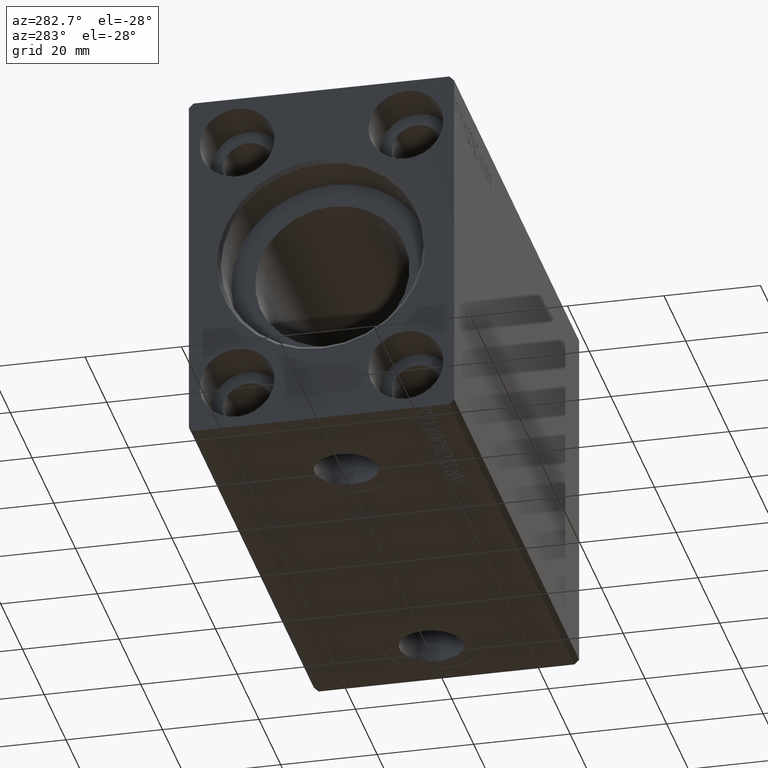
[diagram: clean part render]
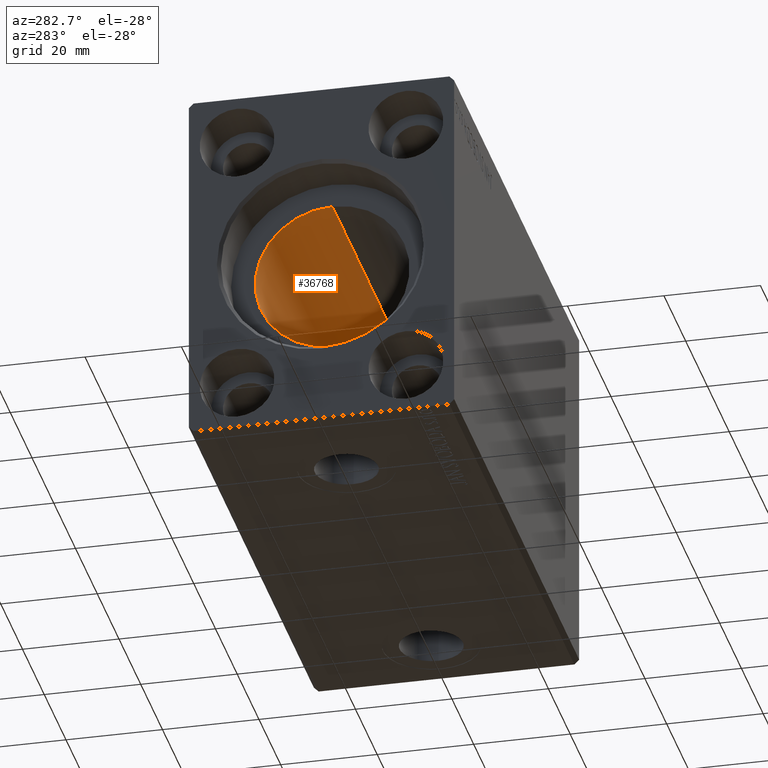
[diagram: same view with one face highlighted and labeled with its STEP entity id]
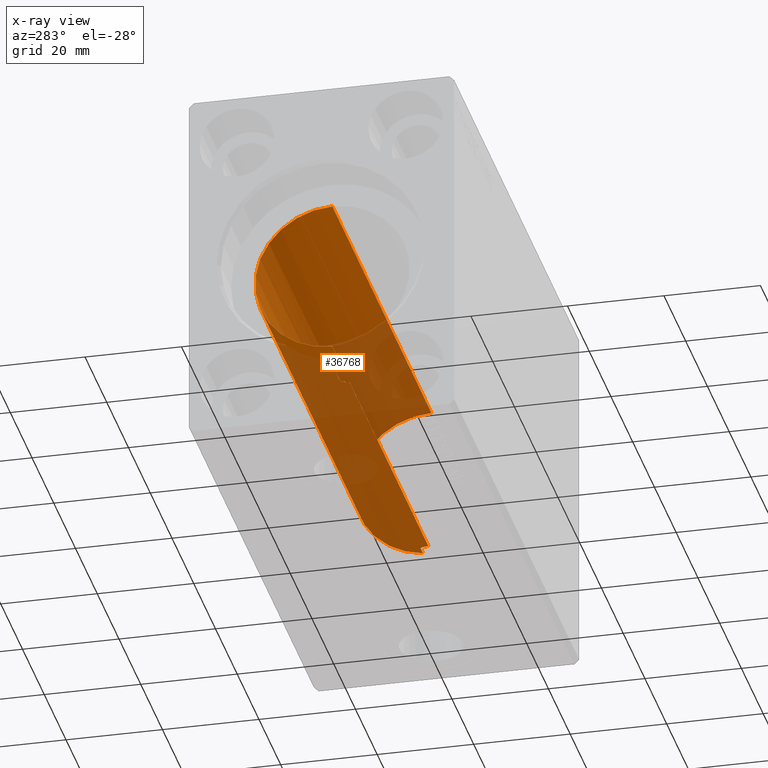
[diagram: x-ray of the same camera — body ghosted, the highlighted face saturated]
A machine part, auxiliary view. The second image highlights one B-rep face of the part: STEP entity #36768.
The next image is the same camera in x-ray: the body ghosted, the highlighted face saturated — about 56% of this face is hidden behind the body in this view.
In plain terms, the highlighted cylindrical surface (partial cylindrical patch) has radius 16 mm, axis along (-1, -0, -0).
Its self-contained STEP definition (entity closure, byte-faithful):
#156 = EDGE_CURVE ( 'NONE', #13833, #29088, #15360, .T. ) ;
#319 = ORIENTED_EDGE ( 'NONE', *, *, #12305, .F. ) ;
#1252 = CYLINDRICAL_SURFACE ( 'NONE', #37849, 16.00000000000000000 ) ;
#1876 = CARTESIAN_POINT ( 'NONE',  ( 101.2000000000000028, 1.786057109949259036, -15.89999999999998970 ) ) ;
#2191 = CARTESIAN_POINT ( 'NONE',  ( 20.80302300273467964, 1.662044306363391177, -15.91393043707981292 ) ) ;
#2592 = ORIENTED_EDGE ( 'NONE', *, *, #156, .T. ) ;
#3091 = CARTESIAN_POINT ( 'NONE',  ( 98.80302300273469029, 1.662044306363389179, -15.91393043707981647 ) ) ;
#3174 = B_SPLINE_CURVE_WITH_KNOTS ( 'NONE', 3,
 ( #23387, #4209, #27049, #30710, #34154, #14330, #17349, #30501 ),
 .UNSPECIFIED., .F., .F.,
 ( 4, 2, 2, 4 ),
 ( 0.000000000000000000, 0.0009687575396886391509, 0.001453136309532957046, 0.001937515079377275266 ),
 .UNSPECIFIED. ) ;
#3402 = DIRECTION ( 'NONE',  ( -1.000000000000000000, 0.000000000000000000, 0.000000000000000000 ) ) ;
#3600 = EDGE_LOOP ( 'NONE', ( #319, #40379, #35843, #33974, #2592, #40582, #26563, #42376, #6209, #38715 ) ) ;
#4198 = VERTEX_POINT ( 'NONE', #26802 ) ;
#4209 = CARTESIAN_POINT ( 'NONE',  ( 25.30299467954352011, 1.537922561208759253, -15.92787311163533914 ) ) ;
#5044 = AXIS2_PLACEMENT_3D ( 'NONE', #22615, #25637, #21978 ) ;
#6017 = DIRECTION ( 'NONE',  ( 0.000000000000000000, 0.000000000000000000, 1.000000000000000000 ) ) ;
#6209 = ORIENTED_EDGE ( 'NONE', *, *, #10328, .F. ) ;
#6355 = VERTEX_POINT ( 'NONE', #34046 ) ;
#7246 = EDGE_CURVE ( 'NONE', #13833, #6355, #23627, .T. ) ;
#8502 = CARTESIAN_POINT ( 'NONE',  ( 98.25000000000000000, 1.952197382189107282E-15, -16.00000000000000000 ) ) ;
#8555 = CARTESIAN_POINT ( 'NONE',  ( 98.90894763336741846, 1.786057109949259036, -15.89999999999998970 ) ) ;
#8889 = CARTESIAN_POINT ( 'NONE',  ( 20.70828422114123057, 1.528580496451064752, -15.92742812959714982 ) ) ;
#9570 = CARTESIAN_POINT ( 'NONE',  ( 98.25000000000000000, 1.952197382189107282E-15, -16.00000000000000000 ) ) ;
#10179 = CARTESIAN_POINT ( 'NONE',  ( 101.2000000000000028, 1.959434878635765131E-15, -16.00000000000000000 ) ) ;
#10328 = EDGE_CURVE ( 'NONE', #41513, #10723, #35706, .T. ) ;
#10345 = CARTESIAN_POINT ( 'NONE',  ( 9.999999999999994671, 0.000000000000000000, 16.00000000000000000 ) ) ;
#10723 = VERTEX_POINT ( 'NONE', #19843 ) ;
#11164 = EDGE_CURVE ( 'NONE', #6355, #29739, #40459, .T. ) ;
#11608 = DIRECTION ( 'NONE',  ( 0.000000000000000000, 0.000000000000000000, 1.000000000000000000 ) ) ;
#11957 = CARTESIAN_POINT ( 'NONE',  ( 98.47635814035336921, 1.104555034037125516, -15.96255602784426486 ) ) ;
#12034 = LINE ( 'NONE', #41545, #34053 ) ;
#12152 = VECTOR ( 'NONE', #23326, 1000.000000000000000 ) ;
#12305 = EDGE_CURVE ( 'NONE', #17486, #36952, #12034, .T. ) ;
#12559 = CARTESIAN_POINT ( 'NONE',  ( 101.2000000000000028, 0.000000000000000000, 16.00000000000000000 ) ) ;
#12770 = DIRECTION ( 'NONE',  ( -1.000000000000000000, -0.000000000000000000, -0.000000000000000000 ) ) ;
#13833 = VERTEX_POINT ( 'NONE', #36762 ) ;
#14290 = EDGE_CURVE ( 'NONE', #42185, #10723, #18925, .T. ) ;
#14330 = CARTESIAN_POINT ( 'NONE',  ( 25.73536268302067853, 0.3260974502564771282, -15.99746611559688780 ) ) ;
#14407 = CARTESIAN_POINT ( 'NONE',  ( 101.2000000000000028, 0.000000000000000000, 0.000000000000000000 ) ) ;
#15192 = CARTESIAN_POINT ( 'NONE',  ( 98.32103554224153186, 0.6416550435731656066, -15.98791951246751886 ) ) ;
#15360 = LINE ( 'NONE', #12559, #18744 ) ;
#17213 = EDGE_CURVE ( 'NONE', #29088, #4198, #23126, .T. ) ;
#17349 = CARTESIAN_POINT ( 'NONE',  ( 25.75000000000000355, 0.1629275007895856497, -16.00000000000000000 ) ) ;
#17486 = VERTEX_POINT ( 'NONE', #9570 ) ;
#17685 = CARTESIAN_POINT ( 'NONE',  ( 20.25000000000000000, 1.952197298178576320E-15, -16.00000000000000000 ) ) ;
#18585 = CARTESIAN_POINT ( 'NONE',  ( 20.36400824168861234, 0.8002234119869107154, -15.98070334047259777 ) ) ;
#18707 = CARTESIAN_POINT ( 'NONE',  ( 25.75000000000000000, 1.966672454835068530E-15, -16.00000000000000000 ) ) ;
#18744 = VECTOR ( 'NONE', #12770, 1000.000000000000000 ) ;
#18925 = B_SPLINE_CURVE_WITH_KNOTS ( 'NONE', 3,
 ( #26120, #35386, #25267, #39260, #18585, #21819, #31740, #8889, #2191, #22034 ),
 .UNSPECIFIED., .F., .F.,
 ( 4, 2, 2, 2, 4 ),
 ( 0.001937515079377276567, 0.002421672136522722528, 0.002905829193668168706, 0.003389986250813614450, 0.003874143307959060194 ),
 .UNSPECIFIED. ) ;
#19013 = AXIS2_PLACEMENT_3D ( 'NONE', #26266, #3402, #6017 ) ;
#19843 = CARTESIAN_POINT ( 'NONE',  ( 20.90894763336742912, 1.786057109949259036, -15.89999999999998970 ) ) ;
#21647 = CARTESIAN_POINT ( 'NONE',  ( 98.24999999999997158, 0.1628529246558471366, -15.99999999999999645 ) ) ;
#21683 = EDGE_CURVE ( 'NONE', #42185, #4198, #39700, .T. ) ;
#21819 = CARTESIAN_POINT ( 'NONE',  ( 20.47635814035335855, 1.104555034037125516, -15.96255602784426841 ) ) ;
#21978 = DIRECTION ( 'NONE',  ( 0.000000000000000000, 0.000000000000000000, 1.000000000000000000 ) ) ;
#22034 = CARTESIAN_POINT ( 'NONE',  ( 20.90894763336742912, 1.786057109949259036, -15.89999999999998970 ) ) ;
#22128 = DIRECTION ( 'NONE',  ( -1.000000000000000000, -0.000000000000000000, -0.000000000000000000 ) ) ;
#22615 = CARTESIAN_POINT ( 'NONE',  ( 101.2000000000000028, 0.000000000000000000, 0.000000000000000000 ) ) ;
#22708 = CARTESIAN_POINT ( 'NONE',  ( 98.70828422114124123, 1.528580496451063198, -15.92742812959714982 ) ) ;
#23126 = CIRCLE ( 'NONE', #19013, 16.00000000000000000 ) ;
#23326 = DIRECTION ( 'NONE',  ( -1.000000000000000000, -0.000000000000000000, -0.000000000000000000 ) ) ;
#23387 = CARTESIAN_POINT ( 'NONE',  ( 25.09105236663257088, 1.786057109949259036, -15.89999999999998970 ) ) ;
#23627 = CIRCLE ( 'NONE', #5044, 16.00000000000000000 ) ;
#23892 = DIRECTION ( 'NONE',  ( -1.000000000000000000, -0.000000000000000000, -0.000000000000000000 ) ) ;
#24735 = DIRECTION ( 'NONE',  ( -1.000000000000000000, -0.000000000000000000, -0.000000000000000000 ) ) ;
#25076 = VECTOR ( 'NONE', #24735, 1000.000000000000000 ) ;
#25267 = CARTESIAN_POINT ( 'NONE',  ( 20.26435230214253380, 0.3237335850403343929, -15.99751506009603652 ) ) ;
#25637 = DIRECTION ( 'NONE',  ( -1.000000000000000000, 0.000000000000000000, 0.000000000000000000 ) ) ;
#26120 = CARTESIAN_POINT ( 'NONE',  ( 20.25000000000000000, 1.952197298178576320E-15, -16.00000000000000000 ) ) ;
#26266 = CARTESIAN_POINT ( 'NONE',  ( 9.999999999999994671, 0.000000000000000000, 0.000000000000000000 ) ) ;
#26563 = ORIENTED_EDGE ( 'NONE', *, *, #21683, .F. ) ;
#26802 = CARTESIAN_POINT ( 'NONE',  ( 9.999999999999994671, 1.959434878635765131E-15, -16.00000000000000000 ) ) ;
#27049 = CARTESIAN_POINT ( 'NONE',  ( 25.46669777805105639, 1.258673386848676135, -15.95335904956524864 ) ) ;
#29088 = VERTEX_POINT ( 'NONE', #10345 ) ;
#29739 = VERTEX_POINT ( 'NONE', #8555 ) ;
#30003 = EDGE_CURVE ( 'NONE', #41513, #36952, #3174, .T. ) ;
#30501 = CARTESIAN_POINT ( 'NONE',  ( 25.75000000000000000, 1.966672454835068530E-15, -16.00000000000000000 ) ) ;
#30710 = CARTESIAN_POINT ( 'NONE',  ( 25.63617786229477957, 0.7997846173174859574, -15.98073294566550473 ) ) ;
#30788 = FACE_OUTER_BOUND ( 'NONE', #3600, .T. ) ;
#31569 = CARTESIAN_POINT ( 'NONE',  ( 98.26435230214251249, 0.3237335850403359472, -15.99751506009604007 ) ) ;
#31740 = CARTESIAN_POINT ( 'NONE',  ( 20.54529199024537789, 1.250171241089528928, -15.95169574138015278 ) ) ;
#33974 = ORIENTED_EDGE ( 'NONE', *, *, #7246, .F. ) ;
#34046 = CARTESIAN_POINT ( 'NONE',  ( 101.2000000000000028, 1.786057109949259036, -15.89999999999998970 ) ) ;
#34053 = VECTOR ( 'NONE', #41968, 1000.000000000000000 ) ;
#34092 = EDGE_CURVE ( 'NONE', #17486, #29739, #42438, .T. ) ;
#34154 = CARTESIAN_POINT ( 'NONE',  ( 25.67843830749630740, 0.6438297815899759469, -15.98783114994251697 ) ) ;
#34707 = VECTOR ( 'NONE', #22128, 1000.000000000000000 ) ;
#35386 = CARTESIAN_POINT ( 'NONE',  ( 20.25000000000000000, 0.1628529246558463039, -16.00000000000000000 ) ) ;
#35706 = LINE ( 'NONE', #41308, #34707 ) ;
#35843 = ORIENTED_EDGE ( 'NONE', *, *, #11164, .F. ) ;
#36566 = CARTESIAN_POINT ( 'NONE',  ( 25.09105236663257088, 1.786057109949259036, -15.89999999999998970 ) ) ;
#36762 = CARTESIAN_POINT ( 'NONE',  ( 101.2000000000000028, 0.000000000000000000, 16.00000000000000000 ) ) ;
#36768 = ADVANCED_FACE ( 'NONE', ( #30788 ), #1252, .F. ) ;
#36952 = VERTEX_POINT ( 'NONE', #18707 ) ;
#37849 = AXIS2_PLACEMENT_3D ( 'NONE', #14407, #23892, #11608 ) ;
#38667 = CARTESIAN_POINT ( 'NONE',  ( 98.90894763336741846, 1.786057109949259036, -15.89999999999998970 ) ) ;
#38715 = ORIENTED_EDGE ( 'NONE', *, *, #30003, .T. ) ;
#39260 = CARTESIAN_POINT ( 'NONE',  ( 20.32103554224154607, 0.6416550435731651625, -15.98791951246752241 ) ) ;
#39700 = LINE ( 'NONE', #10179, #12152 ) ;
#40379 = ORIENTED_EDGE ( 'NONE', *, *, #34092, .T. ) ;
#40459 = LINE ( 'NONE', #1876, #25076 ) ;
#40582 = ORIENTED_EDGE ( 'NONE', *, *, #17213, .T. ) ;
#41308 = CARTESIAN_POINT ( 'NONE',  ( 101.2000000000000028, 1.786057109949259036, -15.89999999999998970 ) ) ;
#41463 = CARTESIAN_POINT ( 'NONE',  ( 98.36400824168860879, 0.8002234119869107154, -15.98070334047259777 ) ) ;
#41513 = VERTEX_POINT ( 'NONE', #36566 ) ;
#41545 = CARTESIAN_POINT ( 'NONE',  ( 101.2000000000000028, 1.959434878635765131E-15, -16.00000000000000000 ) ) ;
#41968 = DIRECTION ( 'NONE',  ( -1.000000000000000000, -0.000000000000000000, -0.000000000000000000 ) ) ;
#42103 = CARTESIAN_POINT ( 'NONE',  ( 98.54529199024536013, 1.250171241089528706, -15.95169574138015633 ) ) ;
#42185 = VERTEX_POINT ( 'NONE', #17685 ) ;
#42376 = ORIENTED_EDGE ( 'NONE', *, *, #14290, .T. ) ;
#42438 = B_SPLINE_CURVE_WITH_KNOTS ( 'NONE', 3,
 ( #8502, #21647, #31569, #15192, #41463, #11957, #42103, #22708, #3091, #38667 ),
 .UNSPECIFIED., .F., .F.,
 ( 4, 2, 2, 2, 4 ),
 ( 0.001937515079377273965, 0.002421672136522718625, 0.002905829193668163068, 0.003389986250813607511, 0.003874143307959051954 ),
 .UNSPECIFIED. ) ;